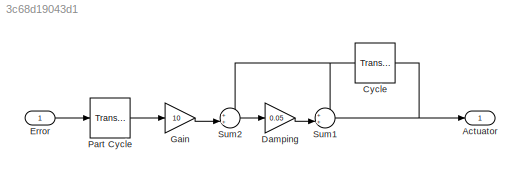
MODEL slx_3c68d19043d1
KIND model
CONFIG AbsTol = auto
CONFIG EnableMultiTasking = off
CONFIG FixedStep = auto
CONFIG MaxStep = auto
CONFIG MinStep = auto
CONFIG RelTol = 1e-3
CONFIG SampleTimeConstraint = Unconstrained
CONFIG SolverName = VariableStepAuto
CONFIG StartTime = 0.0
CONFIG StopTime = 10.0
BLOCK [Outport] Actuator
BLOCK [TransportDelay] Cycle
  DelayTime = 2*pi/w0
  PadeOrder = 20
  Ports = [1, 1]
BLOCK [Gain] Damping
  Gain = 0.05
BLOCK [Inport] Error
BLOCK [Gain] Gain
  Gain = 10
BLOCK [TransportDelay] Part Cycle
  DelayTime = 0.09
  PadeOrder = 20
  Ports = [1, 1]
BLOCK [Sum] Sum1
  Inputs = ++|
  Ports = [2, 1]
BLOCK [Sum] Sum2
  Inputs = ++|
  Ports = [2, 1]
NET Cycle:1 -> Sum1:1, Sum2:1
LINE Damping:1 -> Sum1:2
LINE Error:1 -> Part Cycle:1
LINE Gain:1 -> Sum2:2
LINE Part Cycle:1 -> Gain:1
NET Sum1:1 -> Actuator:1, Cycle:1
LINE Sum2:1 -> Damping:1
note: NET lines group one-source signal fan-out (src -> all destinations, sorted); 1:1 wires keep LINE
